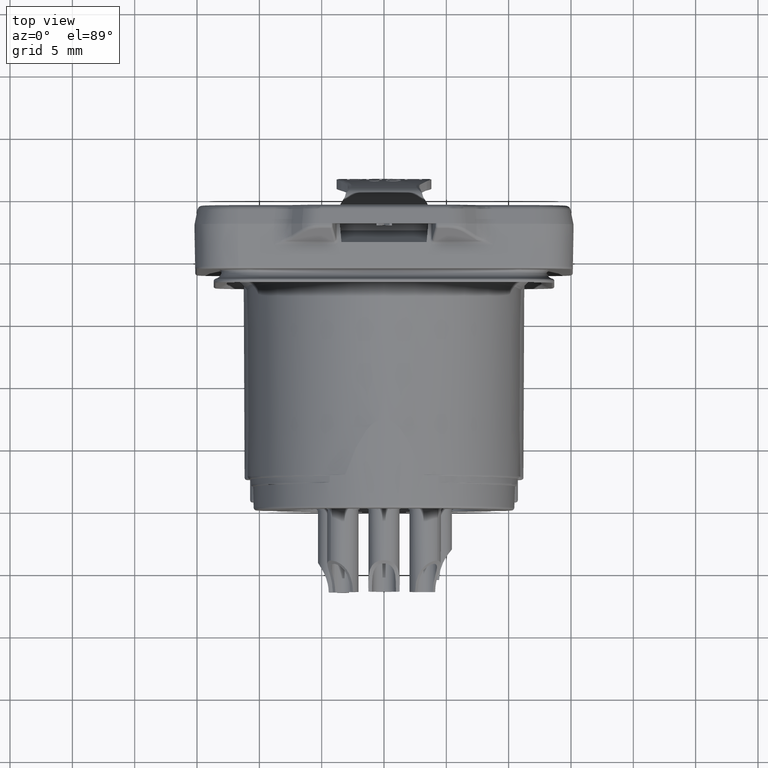
[diagram: clean part render]
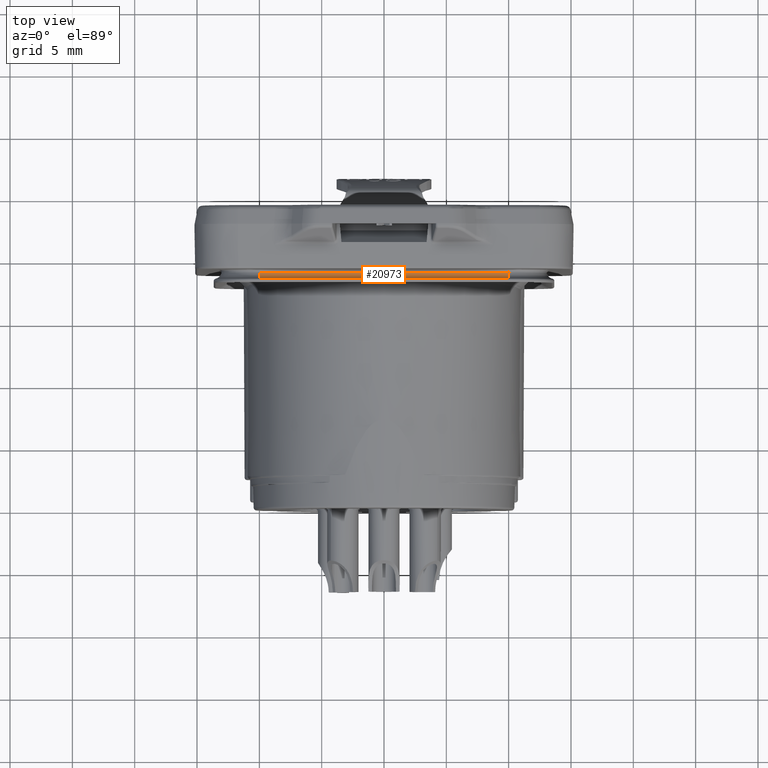
[diagram: same view with one face highlighted and labeled with its STEP entity id]
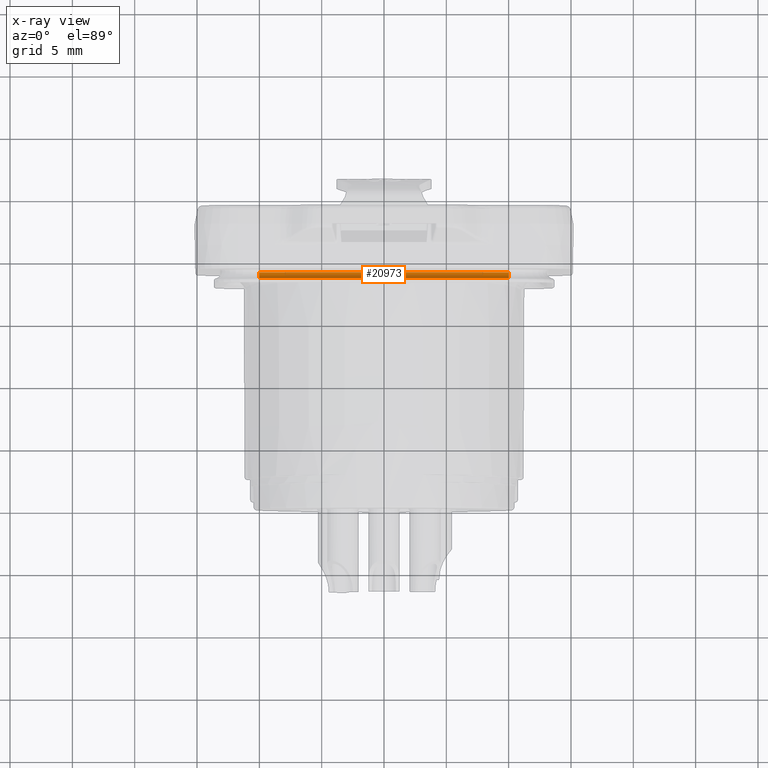
[diagram: x-ray of the same camera — body ghosted, the highlighted face saturated]
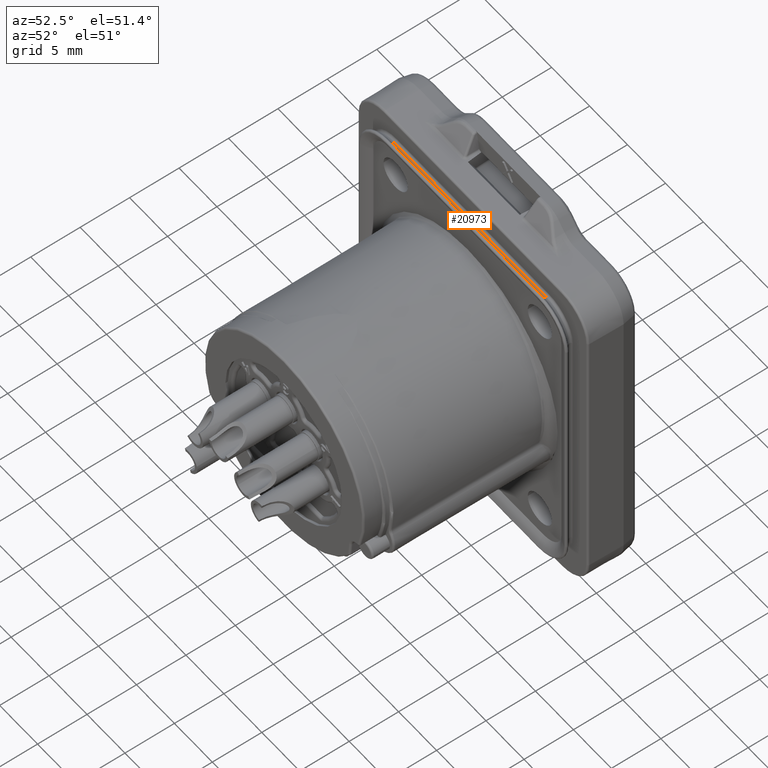
[diagram: same view with one face highlighted and labeled with its STEP entity id]
A machine part, top view. The second image highlights one B-rep face of the part: STEP entity #20973.
The next image is the same camera in x-ray: the body ghosted, the highlighted face saturated — about 0% of this face is hidden behind the body in this view.
A second angle (auxiliary view) of the same face is appended — the face is thin or edge-on in the first view.
In plain terms, the highlighted cylindrical surface (edge-blend (fillet) strip) has radius 0.69 mm, axis along (-1, 0, 0).
Its self-contained STEP definition (entity closure, byte-faithful):
#2869=DIRECTION('',(-1.E0,0.E0,0.E0));
#2870=VECTOR('',#2869,2.E1);
#2871=CARTESIAN_POINT('',(1.E1,-1.255616195402E0,1.553088847299E1));
#2872=LINE('',#2871,#2870);
#2873=CARTESIAN_POINT('',(1.E1,-1.063740321264E0,1.619367324117E1));
#2874=DIRECTION('',(1.E0,0.E0,0.E0));
#2875=DIRECTION('',(0.E0,-9.723949752743E-1,-2.333409781013E-1));
#2876=AXIS2_PLACEMENT_3D('',#2873,#2874,#2875);
#2878=DIRECTION('',(-1.E0,0.E0,0.E0));
#2879=VECTOR('',#2878,2.E1);
#2880=CARTESIAN_POINT('',(1.E1,-1.734692854203E0,1.603266796628E1));
#2881=LINE('',#2880,#2879);
#2895=CARTESIAN_POINT('',(-1.E1,-1.063740321264E0,1.619367324117E1));
#2896=DIRECTION('',(1.E0,0.E0,0.E0));
#2897=DIRECTION('',(0.E0,-9.723949752743E-1,-2.333409781013E-1));
#2898=AXIS2_PLACEMENT_3D('',#2895,#2896,#2897);
#17201=CARTESIAN_POINT('',(1.E1,-1.734692854203E0,1.603266796628E1));
#17203=VERTEX_POINT('',#17201);
#17205=CARTESIAN_POINT('',(-1.E1,-1.734692854203E0,1.603266796628E1));
#17207=VERTEX_POINT('',#17205);
#17352=CARTESIAN_POINT('',(1.E1,-1.255616195402E0,1.553088847299E1));
#17353=VERTEX_POINT('',#17352);
#17358=CARTESIAN_POINT('',(-1.E1,-1.255616195402E0,1.553088847299E1));
#17359=VERTEX_POINT('',#17358);
#20960=CARTESIAN_POINT('',(1.E1,-1.063740321264E0,1.619367324117E1));
#20961=DIRECTION('',(-1.E0,0.E0,0.E0));
#20962=DIRECTION('',(0.E0,0.E0,1.E0));
#20963=AXIS2_PLACEMENT_3D('',#20960,#20961,#20962);
#20964=CYLINDRICAL_SURFACE('',#20963,6.9E-1);
#20966=ORIENTED_EDGE('',*,*,#20965,.F.);
#20967=ORIENTED_EDGE('',*,*,#20955,.F.);
#20968=ORIENTED_EDGE('',*,*,#20870,.T.);
#20970=ORIENTED_EDGE('',*,*,#20969,.T.);
#20971=EDGE_LOOP('',(#20966,#20967,#20968,#20970));
#20972=FACE_OUTER_BOUND('',#20971,.F.);
#20973=ADVANCED_FACE('',(#20972),#20964,.F.);
#2877=CIRCLE('',#2876,6.9E-1);
#2899=CIRCLE('',#2898,6.9E-1);
#20870=EDGE_CURVE('',#17203,#17207,#2881,.T.);
#20955=EDGE_CURVE('',#17203,#17353,#2877,.T.);
#20965=EDGE_CURVE('',#17353,#17359,#2872,.T.);
#20969=EDGE_CURVE('',#17207,#17359,#2899,.T.);